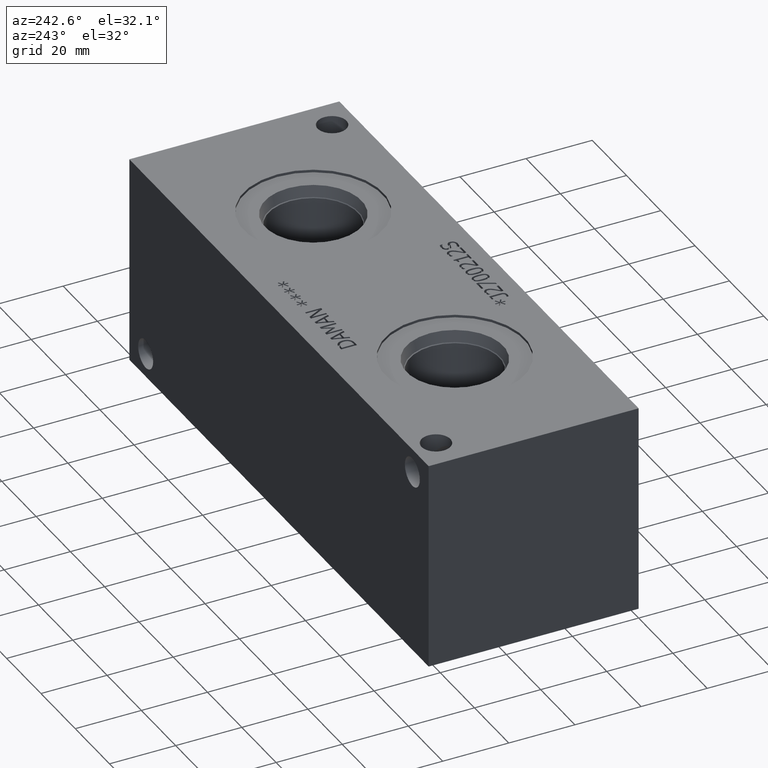
[diagram: clean part render]
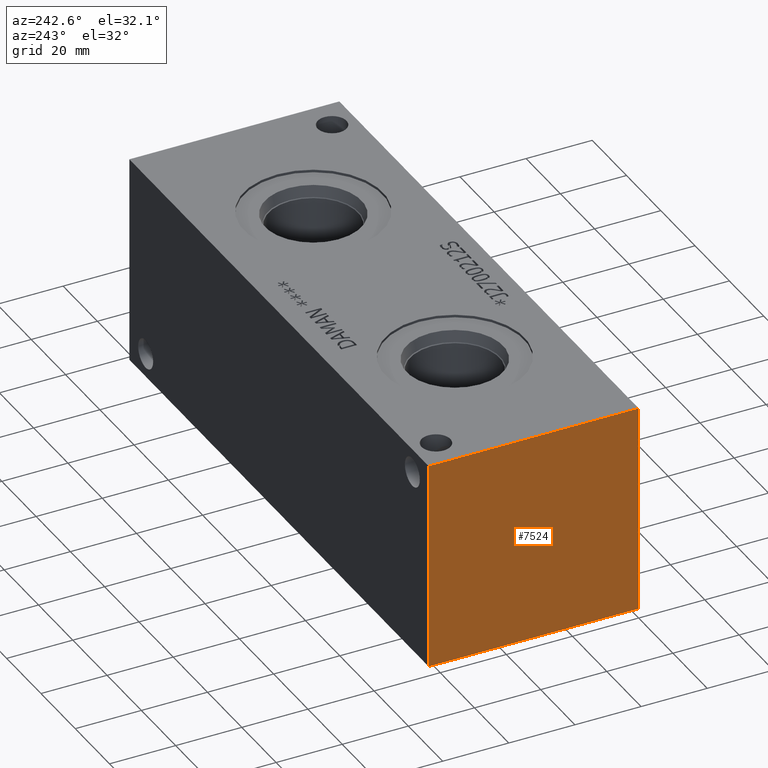
[diagram: same view with one face highlighted and labeled with its STEP entity id]
A machine part, auxiliary view. The second image highlights one B-rep face of the part: STEP entity #7524.
In plain terms, the highlighted planar face has unit normal (-1, 0, 0).
Its self-contained STEP definition (entity closure, byte-faithful):
#915=FACE_OUTER_BOUND('',#1327,.T.);
#1327=EDGE_LOOP('',(#6588,#6589,#6590,#6591));
#1617=LINE('',#11460,#2331);
#2049=LINE('',#12954,#2763);
#2050=LINE('',#12955,#2764);
#2051=LINE('',#12956,#2765);
#2331=VECTOR('',#8402,10.);
#2763=VECTOR('',#9538,10.);
#2764=VECTOR('',#9539,10.);
#2765=VECTOR('',#9540,10.);
#3057=VERTEX_POINT('',#11453);
#3060=VERTEX_POINT('',#11458);
#3467=VERTEX_POINT('',#12952);
#3468=VERTEX_POINT('',#12953);
#3903=EDGE_CURVE('',#3060,#3057,#1617,.T.);
#4515=EDGE_CURVE('',#3467,#3468,#2049,.T.);
#4516=EDGE_CURVE('',#3468,#3057,#2050,.T.);
#4517=EDGE_CURVE('',#3467,#3060,#2051,.T.);
#6588=ORIENTED_EDGE('',*,*,#4515,.T.);
#6589=ORIENTED_EDGE('',*,*,#4516,.T.);
#6590=ORIENTED_EDGE('',*,*,#3903,.F.);
#6591=ORIENTED_EDGE('',*,*,#4517,.F.);
#6852=PLANE('',#7970);
#7524=ADVANCED_FACE('',(#915),#6852,.T.);
#7970=AXIS2_PLACEMENT_3D('',#12951,#9536,#9537);
#8402=DIRECTION('',(0.,-1.,0.));
#9536=DIRECTION('center_axis',(-1.,0.,0.));
#9537=DIRECTION('ref_axis',(0.,-1.,0.));
#9538=DIRECTION('',(0.,-1.,0.));
#9539=DIRECTION('',(0.,0.,1.));
#9540=DIRECTION('',(0.,0.,1.));
#11453=CARTESIAN_POINT('',(0.,0.,63.5));
#11458=CARTESIAN_POINT('',(0.,63.5,63.5));
#11460=CARTESIAN_POINT('',(0.,63.5,63.5));
#12951=CARTESIAN_POINT('Origin',(0.,63.5,0.));
#12952=CARTESIAN_POINT('',(0.,63.5,0.));
#12953=CARTESIAN_POINT('',(0.,0.,0.));
#12954=CARTESIAN_POINT('',(0.,63.5,0.));
#12955=CARTESIAN_POINT('',(0.,0.,0.));
#12956=CARTESIAN_POINT('',(0.,63.5,0.));